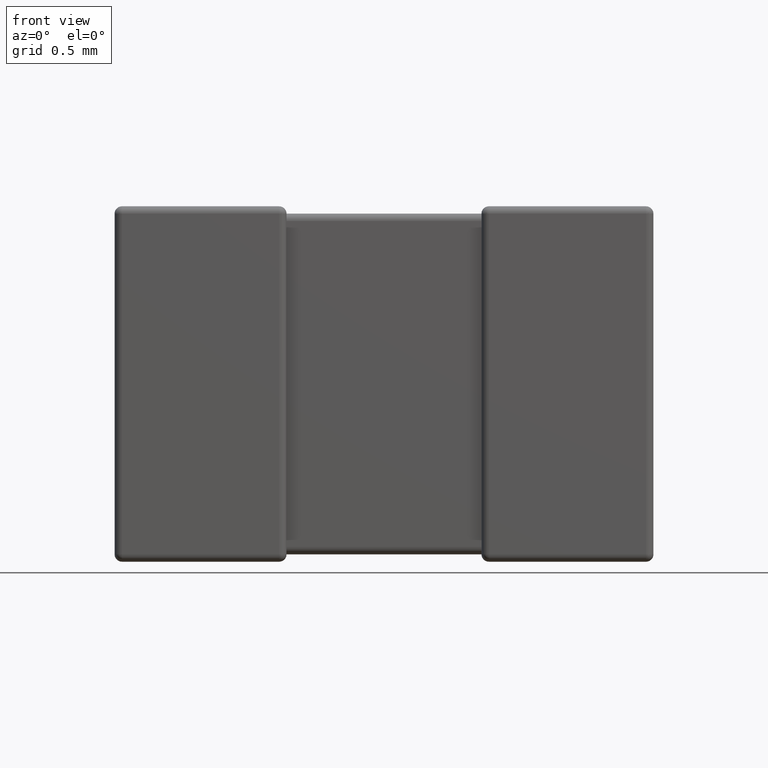
[diagram: clean part render]
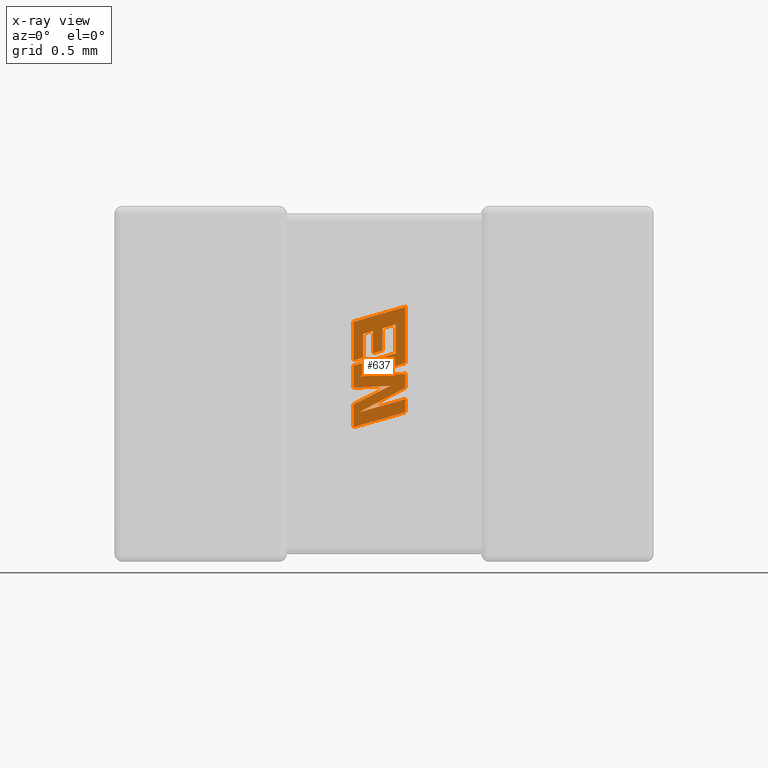
[diagram: x-ray — body ghosted, one internal face saturated and labeled with its STEP entity id]
A machine part, front view, then the same camera in x-ray: the body is ghosted and one INTERNAL B-rep face — a face not visible from any outside direction — is saturated and labeled: STEP entity #637.
In plain terms, the highlighted planar face has unit normal (0, -1, 0).
Its self-contained STEP definition (entity closure, byte-faithful):
#30 = VERTEX_POINT ( 'NONE', #2376 ) ;
#39 = CARTESIAN_POINT ( 'NONE',  ( 1.269000000000003681, 1.467759999999999954, -0.6839081761791220293 ) ) ;
#104 = VERTEX_POINT ( 'NONE', #4326 ) ;
#106 = CARTESIAN_POINT ( 'NONE',  ( 1.225648156714193471, 1.467759999999999954, -0.6420286467557699828 ) ) ;
#138 = VERTEX_POINT ( 'NONE', #854 ) ;
#157 = EDGE_CURVE ( 'NONE', #3177, #1509, #1079, .T. ) ;
#210 = EDGE_CURVE ( 'NONE', #2755, #3177, #1294, .T. ) ;
#307 = ORIENTED_EDGE ( 'NONE', *, *, #2809, .F. ) ;
#358 = VECTOR ( 'NONE', #1642, 1000.000000000000114 ) ;
#370 = CARTESIAN_POINT ( 'NONE',  ( 1.084506278058296802, 1.467759999999999954, -0.6600178949437544018 ) ) ;
#418 = LINE ( 'NONE', #2679, #2107 ) ;
#422 = PLANE ( 'NONE',  #4450 ) ;
#438 = CARTESIAN_POINT ( 'NONE',  ( 1.169014311898064706, 1.467759999999999954, -0.5318483123047624828 ) ) ;
#554 = CARTESIAN_POINT ( 'NONE',  ( 1.041132956314514857, 1.467759999999999954, -0.8640816736198583259 ) ) ;
#600 = DIRECTION ( 'NONE',  ( -0.9611638845408968512, 0.000000000000000000, -0.2759782365590690012 ) ) ;
#623 = CARTESIAN_POINT ( 'NONE',  ( 1.269000000000003681, 1.467759999999999954, -0.6433485324851828668 ) ) ;
#626 = CARTESIAN_POINT ( 'NONE',  ( 1.041132956314514857, 1.467759999999999954, -0.5039962945937563887 ) ) ;
#637 = ADVANCED_FACE ( 'NONE', ( #3693 ), #422, .T. ) ;
#735 = DIRECTION ( 'NONE',  ( 0.000000000000000000, 0.000000000000000000, -1.000000000000000000 ) ) ;
#748 = ORIENTED_EDGE ( 'NONE', *, *, #1026, .F. ) ;
#750 = DIRECTION ( 'NONE',  ( 0.8958676361826827250, 0.000000000000000000, 0.4443210308329466618 ) ) ;
#777 = CARTESIAN_POINT ( 'NONE',  ( 1.041132956314514857, 1.467759999999999954, -0.7921057084777192170 ) ) ;
#787 = VERTEX_POINT ( 'NONE', #4392 ) ;
#792 = VERTEX_POINT ( 'NONE', #2344 ) ;
#841 = EDGE_CURVE ( 'NONE', #4492, #787, #418, .T. ) ;
#854 = CARTESIAN_POINT ( 'NONE',  ( 1.269000000000003681, 1.467759999999999954, -0.8985091539642460212 ) ) ;
#861 = DIRECTION ( 'NONE',  ( -0.9615454294334447871, 0.000000000000000000, -0.2746459304917006072 ) ) ;
#965 = VERTEX_POINT ( 'NONE', #4531 ) ;
#986 = DIRECTION ( 'NONE',  ( 0.000000000000000000, 0.000000000000000000, 1.000000000000000000 ) ) ;
#989 = EDGE_CURVE ( 'NONE', #1999, #4469, #2746, .T. ) ;
#1026 = EDGE_CURVE ( 'NONE', #2054, #2609, #3912, .T. ) ;
#1034 = VERTEX_POINT ( 'NONE', #370 ) ;
#1039 = ORIENTED_EDGE ( 'NONE', *, *, #3953, .F. ) ;
#1042 = EDGE_CURVE ( 'NONE', #792, #4492, #4362, .T. ) ;
#1079 = LINE ( 'NONE', #2321, #2497 ) ;
#1107 = CARTESIAN_POINT ( 'NONE',  ( 1.269000000000003681, 1.467759999999999954, -0.8406046158351553332 ) ) ;
#1108 = DIRECTION ( 'NONE',  ( 0.000000000000000000, 0.000000000000000000, 1.000000000000000000 ) ) ;
#1140 = CARTESIAN_POINT ( 'NONE',  ( 1.041132956314514857, 1.467759999999999954, -0.6950651962186354949 ) ) ;
#1145 = CARTESIAN_POINT ( 'NONE',  ( 1.041132956314514857, 1.467759999999999954, -0.6723368301145032921 ) ) ;
#1218 = EDGE_CURVE ( 'NONE', #787, #2892, #2673, .T. ) ;
#1226 = CARTESIAN_POINT ( 'NONE',  ( 1.169014311898064706, 1.467759999999999954, -0.5318483123047624828 ) ) ;
#1243 = LINE ( 'NONE', #438, #4541 ) ;
#1258 = ORIENTED_EDGE ( 'NONE', *, *, #157, .F. ) ;
#1269 = EDGE_CURVE ( 'NONE', #2501, #1999, #3301, .T. ) ;
#1289 = VECTOR ( 'NONE', #735, 1000.000000000000000 ) ;
#1294 = LINE ( 'NONE', #3067, #2032 ) ;
#1351 = VECTOR ( 'NONE', #2601, 1000.000000000000000 ) ;
#1386 = DIRECTION ( 'NONE',  ( 0.000000000000000000, 0.000000000000000000, -1.000000000000000000 ) ) ;
#1412 = DIRECTION ( 'NONE',  ( -0.9610674221107078363, 0.000000000000000000, -0.2763139702539095244 ) ) ;
#1413 = CARTESIAN_POINT ( 'NONE',  ( 1.066135960447848641, 1.467759999999999954, -0.7421563696426072276 ) ) ;
#1447 = EDGE_CURVE ( 'NONE', #965, #104, #1468, .T. ) ;
#1468 = LINE ( 'NONE', #4042, #2265 ) ;
#1509 = VERTEX_POINT ( 'NONE', #106 ) ;
#1513 = CARTESIAN_POINT ( 'NONE',  ( -0.2601923135456278291, 1.467759999999999954, 0.003507179810070972133 ) ) ;
#1554 = VECTOR ( 'NONE', #600, 1000.000000000000114 ) ;
#1565 = ORIENTED_EDGE ( 'NONE', *, *, #4657, .F. ) ;
#1579 = ORIENTED_EDGE ( 'NONE', *, *, #1218, .F. ) ;
#1642 = DIRECTION ( 'NONE',  ( -0.9601763114327565019, 0.000000000000000000, -0.2793947940878393488 ) ) ;
#1646 = EDGE_CURVE ( 'NONE', #2609, #2755, #3175, .T. ) ;
#1703 = EDGE_CURVE ( 'NONE', #2892, #4368, #2962, .T. ) ;
#1735 = ORIENTED_EDGE ( 'NONE', *, *, #1269, .F. ) ;
#1783 = CARTESIAN_POINT ( 'NONE',  ( 1.041132956314514857, 1.467759999999999954, -0.8640816736198583259 ) ) ;
#1830 = CARTESIAN_POINT ( 'NONE',  ( 1.269000000000003681, 1.467759999999999954, -0.8985091539642460212 ) ) ;
#1847 = ORIENTED_EDGE ( 'NONE', *, *, #3358, .F. ) ;
#1857 = DIRECTION ( 'NONE',  ( 0.000000000000000000, 0.000000000000000000, -1.000000000000000000 ) ) ;
#1858 = VECTOR ( 'NONE', #4314, 1000.000000000000000 ) ;
#1894 = DIRECTION ( 'NONE',  ( 0.000000000000000000, -1.000000000000000000, 0.000000000000000000 ) ) ;
#1899 = CARTESIAN_POINT ( 'NONE',  ( 1.169014311898064706, 1.467759999999999954, -0.6296376548220525837 ) ) ;
#1937 = CARTESIAN_POINT ( 'NONE',  ( 1.126889512155282880, 1.467759999999999954, -0.5438665490579562833 ) ) ;
#1977 = VECTOR ( 'NONE', #3228, 1000.000000000000114 ) ;
#1985 = CARTESIAN_POINT ( 'NONE',  ( 1.225648156714193471, 1.467759999999999954, -0.5157117543673824800 ) ) ;
#1987 = LINE ( 'NONE', #2043, #2858 ) ;
#1999 = VERTEX_POINT ( 'NONE', #2460 ) ;
#2032 = VECTOR ( 'NONE', #986, 1000.000000000000000 ) ;
#2043 = CARTESIAN_POINT ( 'NONE',  ( 1.225648156714193471, 1.467759999999999954, -0.6420286467557699828 ) ) ;
#2054 = VERTEX_POINT ( 'NONE', #554 ) ;
#2107 = VECTOR ( 'NONE', #1857, 1000.000000000000000 ) ;
#2108 = VERTEX_POINT ( 'NONE', #4572 ) ;
#2125 = VECTOR ( 'NONE', #861, 1000.000000000000114 ) ;
#2135 = DIRECTION ( 'NONE',  ( 0.9611542233438712390, 0.000000000000000000, 0.2760118818968482213 ) ) ;
#2152 = VERTEX_POINT ( 'NONE', #2162 ) ;
#2162 = CARTESIAN_POINT ( 'NONE',  ( 1.041132956314514857, 1.467759999999999954, -0.9640226091935145680 ) ) ;
#2167 = CARTESIAN_POINT ( 'NONE',  ( 1.041132956314514857, 1.467759999999999954, -0.9640226091935145680 ) ) ;
#2216 = CARTESIAN_POINT ( 'NONE',  ( 1.225648156714193471, 1.467759999999999954, -0.5157117543673824800 ) ) ;
#2265 = VECTOR ( 'NONE', #1108, 1000.000000000000000 ) ;
#2292 = CARTESIAN_POINT ( 'NONE',  ( 1.269000000000003681, 1.467759999999999954, -0.7915325740813675681 ) ) ;
#2296 = EDGE_CURVE ( 'NONE', #2108, #965, #4023, .T. ) ;
#2315 = DIRECTION ( 'NONE',  ( 0.000000000000000000, 0.000000000000000000, -1.000000000000000000 ) ) ;
#2321 = CARTESIAN_POINT ( 'NONE',  ( 1.041132956314514857, 1.467759999999999954, -0.6950651962186354949 ) ) ;
#2344 = CARTESIAN_POINT ( 'NONE',  ( 1.066135960447848641, 1.467759999999999954, -0.7421563696426072276 ) ) ;
#2369 = DIRECTION ( 'NONE',  ( 0.9610029908221285888, 0.000000000000000000, 0.2765379750249931101 ) ) ;
#2376 = CARTESIAN_POINT ( 'NONE',  ( 1.084506278058296802, 1.467759999999999954, -0.5561993412986168117 ) ) ;
#2447 = EDGE_CURVE ( 'NONE', #4368, #138, #3967, .T. ) ;
#2453 = ORIENTED_EDGE ( 'NONE', *, *, #4246, .F. ) ;
#2455 = CARTESIAN_POINT ( 'NONE',  ( 1.269000000000003681, 1.467759999999999954, -0.8406046158351553332 ) ) ;
#2460 = CARTESIAN_POINT ( 'NONE',  ( 1.041132956314514857, 1.467759999999999954, -0.5039962945937563887 ) ) ;
#2476 = CARTESIAN_POINT ( 'NONE',  ( 1.269000000000003681, 1.467759999999999954, -0.4384253323412780623 ) ) ;
#2491 = VECTOR ( 'NONE', #2538, 1000.000000000000227 ) ;
#2495 = DIRECTION ( 'NONE',  ( -0.9985542843760948362, 0.000000000000000000, -0.05375259206908061110 ) ) ;
#2497 = VECTOR ( 'NONE', #2543, 1000.000000000000000 ) ;
#2501 = VERTEX_POINT ( 'NONE', #2990 ) ;
#2538 = DIRECTION ( 'NONE',  ( 0.9984327301130250243, 0.000000000000000000, 0.05596501978067341954 ) ) ;
#2543 = DIRECTION ( 'NONE',  ( 0.9610853065513847993, 0.000000000000000000, 0.2762517575166369976 ) ) ;
#2601 = DIRECTION ( 'NONE',  ( 0.000000000000000000, 0.000000000000000000, 1.000000000000000000 ) ) ;
#2609 = VERTEX_POINT ( 'NONE', #3409 ) ;
#2648 = DIRECTION ( 'NONE',  ( -0.8843386665637651411, 0.000000000000000000, -0.4668459304955136502 ) ) ;
#2673 = LINE ( 'NONE', #2292, #4446 ) ;
#2679 = CARTESIAN_POINT ( 'NONE',  ( 1.269000000000003681, 1.467759999999999954, -0.7307852580555117550 ) ) ;
#2687 = VERTEX_POINT ( 'NONE', #1985 ) ;
#2744 = ORIENTED_EDGE ( 'NONE', *, *, #3096, .F. ) ;
#2746 = LINE ( 'NONE', #626, #3982 ) ;
#2755 = VERTEX_POINT ( 'NONE', #777 ) ;
#2770 = VECTOR ( 'NONE', #3597, 1000.000000000000000 ) ;
#2790 = LINE ( 'NONE', #4216, #1554 ) ;
#2809 = EDGE_CURVE ( 'NONE', #3723, #2108, #1243, .T. ) ;
#2858 = VECTOR ( 'NONE', #3079, 1000.000000000000000 ) ;
#2860 = LINE ( 'NONE', #2167, #3443 ) ;
#2892 = VERTEX_POINT ( 'NONE', #3189 ) ;
#2900 = CARTESIAN_POINT ( 'NONE',  ( 1.084506278058296802, 1.467759999999999954, -0.5561993412986168117 ) ) ;
#2934 = EDGE_CURVE ( 'NONE', #4469, #4030, #4573, .T. ) ;
#2952 = EDGE_LOOP ( 'NONE', ( #4407, #1039, #3199, #3681, #1579, #3346, #3726, #4402, #3996, #4644, #1735, #2453, #1847, #1565, #4117, #4049, #307, #2744, #3304, #1258, #3129, #4205, #748 ) ) ;
#2962 = LINE ( 'NONE', #3920, #3468 ) ;
#2970 = DIRECTION ( 'NONE',  ( 0.000000000000000000, 0.000000000000000000, -1.000000000000000000 ) ) ;
#2990 = CARTESIAN_POINT ( 'NONE',  ( 1.041132956314514857, 1.467759999999999954, -0.6723368301145032921 ) ) ;
#3067 = CARTESIAN_POINT ( 'NONE',  ( 1.041132956314514857, 1.467759999999999954, -0.7921057084777192170 ) ) ;
#3079 = DIRECTION ( 'NONE',  ( 0.000000000000000000, 0.000000000000000000, 1.000000000000000000 ) ) ;
#3096 = EDGE_CURVE ( 'NONE', #2687, #3723, #3580, .T. ) ;
#3129 = ORIENTED_EDGE ( 'NONE', *, *, #210, .F. ) ;
#3175 = LINE ( 'NONE', #3823, #3764 ) ;
#3177 = VERTEX_POINT ( 'NONE', #1140 ) ;
#3182 = LINE ( 'NONE', #2900, #2770 ) ;
#3189 = CARTESIAN_POINT ( 'NONE',  ( 1.065159037018030608, 1.467759999999999954, -0.8991410363531673333 ) ) ;
#3192 = VECTOR ( 'NONE', #1386, 1000.000000000000000 ) ;
#3199 = ORIENTED_EDGE ( 'NONE', *, *, #2447, .F. ) ;
#3228 = DIRECTION ( 'NONE',  ( -0.9617234872620624708, 0.000000000000000000, -0.2740217765953968376 ) ) ;
#3301 = LINE ( 'NONE', #1145, #1351 ) ;
#3304 = ORIENTED_EDGE ( 'NONE', *, *, #4422, .F. ) ;
#3346 = ORIENTED_EDGE ( 'NONE', *, *, #841, .F. ) ;
#3358 = EDGE_CURVE ( 'NONE', #30, #1034, #3182, .T. ) ;
#3376 = VECTOR ( 'NONE', #1412, 1000.000000000000114 ) ;
#3409 = CARTESIAN_POINT ( 'NONE',  ( 1.203924100055729252, 1.467759999999999954, -0.7833425935635931481 ) ) ;
#3443 = VECTOR ( 'NONE', #3536, 1000.000000000000000 ) ;
#3468 = VECTOR ( 'NONE', #2135, 1000.000000000000114 ) ;
#3536 = DIRECTION ( 'NONE',  ( 0.000000000000000000, 0.000000000000000000, 1.000000000000000000 ) ) ;
#3580 = LINE ( 'NONE', #2216, #1977 ) ;
#3597 = DIRECTION ( 'NONE',  ( 0.000000000000000000, 0.000000000000000000, -1.000000000000000000 ) ) ;
#3681 = ORIENTED_EDGE ( 'NONE', *, *, #1703, .F. ) ;
#3693 = FACE_OUTER_BOUND ( 'NONE', #2952, .T. ) ;
#3723 = VERTEX_POINT ( 'NONE', #1226 ) ;
#3726 = ORIENTED_EDGE ( 'NONE', *, *, #1042, .F. ) ;
#3755 = VECTOR ( 'NONE', #750, 1000.000000000000114 ) ;
#3764 = VECTOR ( 'NONE', #2495, 1000.000000000000114 ) ;
#3799 = EDGE_CURVE ( 'NONE', #4030, #792, #2790, .T. ) ;
#3823 = CARTESIAN_POINT ( 'NONE',  ( 1.203924100055729252, 1.467759999999999954, -0.7833425935635931481 ) ) ;
#3912 = LINE ( 'NONE', #1783, #3755 ) ;
#3920 = CARTESIAN_POINT ( 'NONE',  ( 1.065159037018030608, 1.467759999999999954, -0.8991410363531673333 ) ) ;
#3928 = EDGE_CURVE ( 'NONE', #2152, #2054, #2860, .T. ) ;
#3953 = EDGE_CURVE ( 'NONE', #138, #2152, #3977, .T. ) ;
#3967 = LINE ( 'NONE', #2455, #1289 ) ;
#3977 = LINE ( 'NONE', #1830, #3376 ) ;
#3982 = VECTOR ( 'NONE', #2369, 1000.000000000000114 ) ;
#3996 = ORIENTED_EDGE ( 'NONE', *, *, #2934, .F. ) ;
#4023 = LINE ( 'NONE', #1899, #2125 ) ;
#4030 = VERTEX_POINT ( 'NONE', #39 ) ;
#4042 = CARTESIAN_POINT ( 'NONE',  ( 1.126889512155282880, 1.467759999999999954, -0.6416697486451697907 ) ) ;
#4049 = ORIENTED_EDGE ( 'NONE', *, *, #2296, .F. ) ;
#4117 = ORIENTED_EDGE ( 'NONE', *, *, #1447, .F. ) ;
#4205 = ORIENTED_EDGE ( 'NONE', *, *, #1646, .F. ) ;
#4216 = CARTESIAN_POINT ( 'NONE',  ( 1.269000000000003681, 1.467759999999999954, -0.6839081761791220293 ) ) ;
#4219 = LINE ( 'NONE', #1937, #358 ) ;
#4236 = LINE ( 'NONE', #4255, #1858 ) ;
#4246 = EDGE_CURVE ( 'NONE', #1034, #2501, #4236, .T. ) ;
#4255 = CARTESIAN_POINT ( 'NONE',  ( 1.084506278058296802, 1.467759999999999954, -0.6600178949437544018 ) ) ;
#4314 = DIRECTION ( 'NONE',  ( -0.9619530280415479195, 0.000000000000000000, -0.2732148821746301914 ) ) ;
#4326 = CARTESIAN_POINT ( 'NONE',  ( 1.126889512155282880, 1.467759999999999954, -0.5438665490579562833 ) ) ;
#4362 = LINE ( 'NONE', #1413, #2491 ) ;
#4368 = VERTEX_POINT ( 'NONE', #1107 ) ;
#4392 = CARTESIAN_POINT ( 'NONE',  ( 1.269000000000003681, 1.467759999999999954, -0.7915325740813675681 ) ) ;
#4402 = ORIENTED_EDGE ( 'NONE', *, *, #3799, .F. ) ;
#4407 = ORIENTED_EDGE ( 'NONE', *, *, #3928, .F. ) ;
#4422 = EDGE_CURVE ( 'NONE', #1509, #2687, #1987, .T. ) ;
#4446 = VECTOR ( 'NONE', #2648, 1000.000000000000227 ) ;
#4450 = AXIS2_PLACEMENT_3D ( 'NONE', #1513, #1894, #2970 ) ;
#4469 = VERTEX_POINT ( 'NONE', #2476 ) ;
#4492 = VERTEX_POINT ( 'NONE', #4662 ) ;
#4531 = CARTESIAN_POINT ( 'NONE',  ( 1.126889512155282880, 1.467759999999999954, -0.6416697486451697907 ) ) ;
#4541 = VECTOR ( 'NONE', #2315, 1000.000000000000000 ) ;
#4572 = CARTESIAN_POINT ( 'NONE',  ( 1.169014311898064706, 1.467759999999999954, -0.6296376548220525837 ) ) ;
#4573 = LINE ( 'NONE', #623, #3192 ) ;
#4644 = ORIENTED_EDGE ( 'NONE', *, *, #989, .F. ) ;
#4657 = EDGE_CURVE ( 'NONE', #104, #30, #4219, .T. ) ;
#4662 = CARTESIAN_POINT ( 'NONE',  ( 1.269000000000003681, 1.467759999999999954, -0.7307852580555117550 ) ) ;